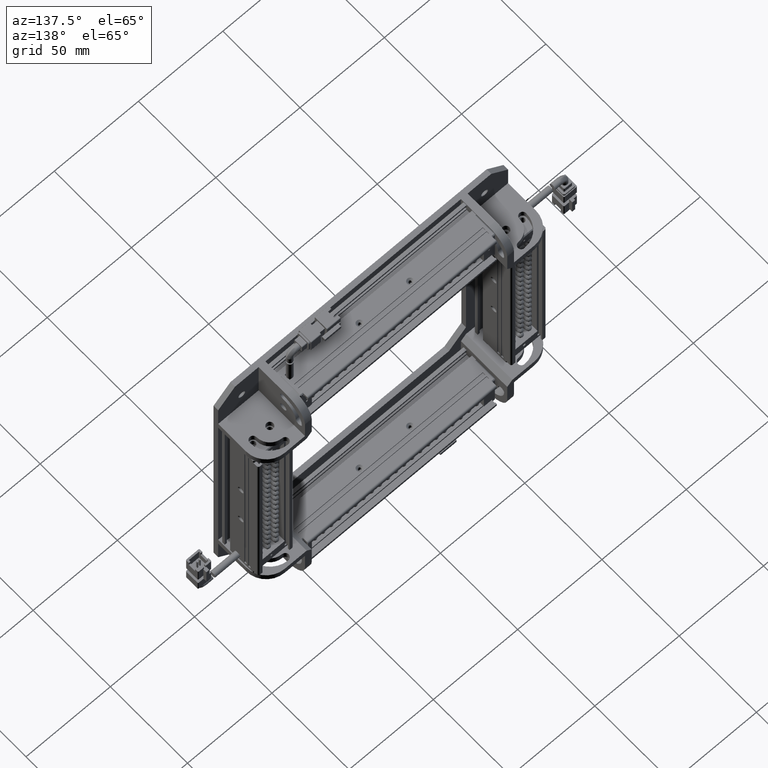
[diagram: clean part render]
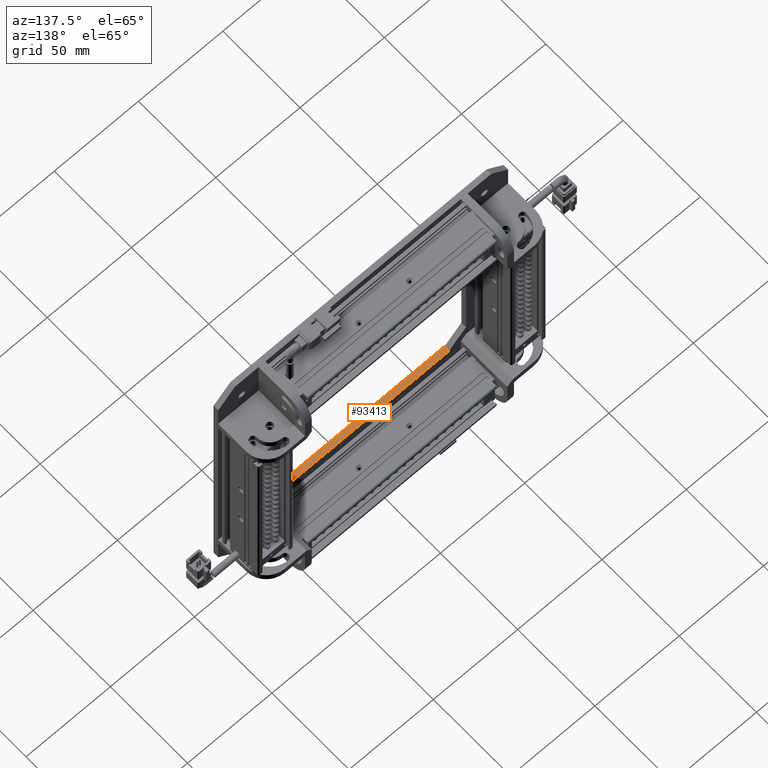
[diagram: same view with one face highlighted and labeled with its STEP entity id]
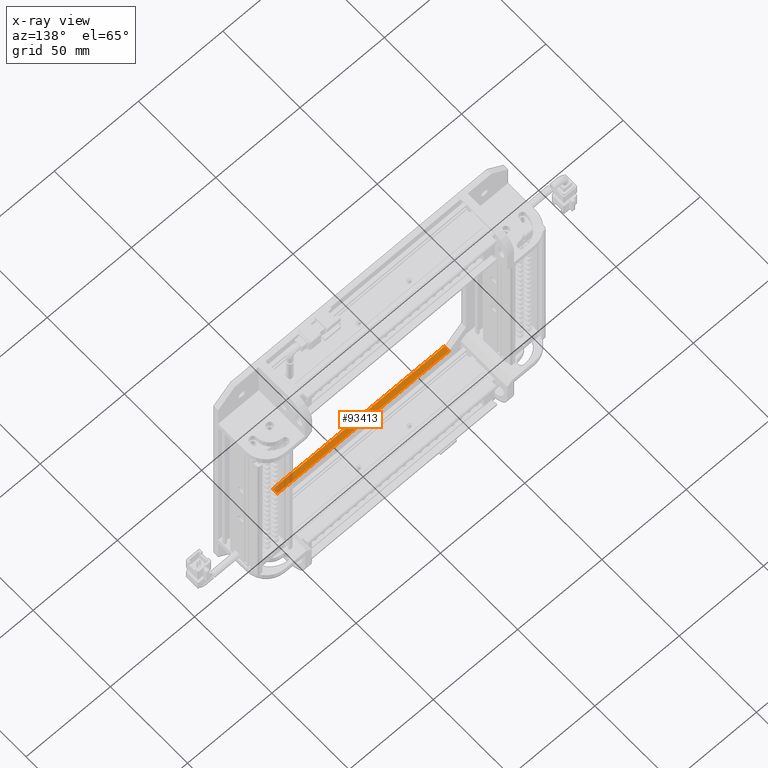
[diagram: x-ray of the same camera — body ghosted, the highlighted face saturated]
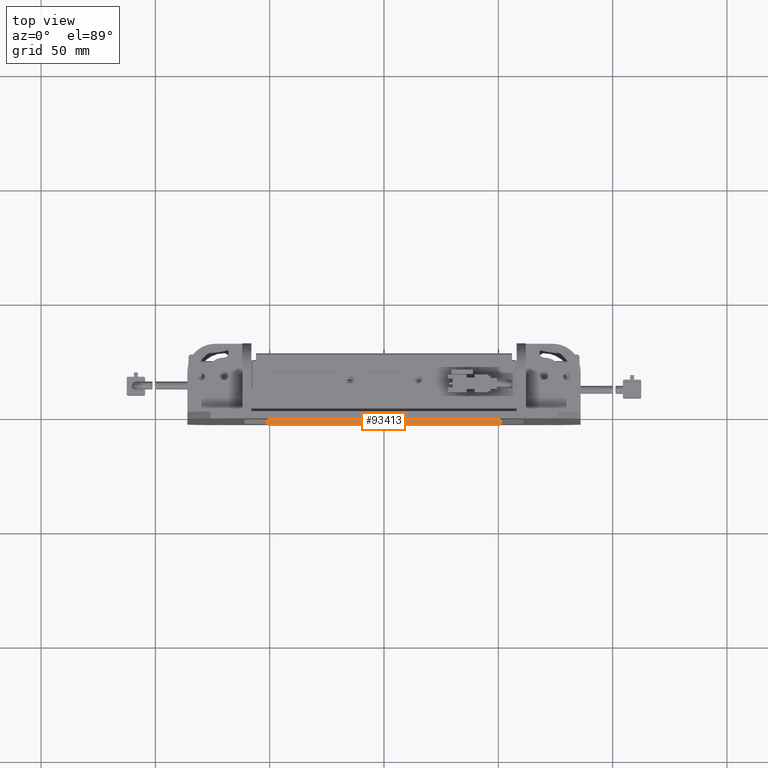
[diagram: same view with one face highlighted and labeled with its STEP entity id]
A machine part, auxiliary view. The second image highlights one B-rep face of the part: STEP entity #93413.
The next image is the same camera in x-ray: the body ghosted, the highlighted face saturated — about 10% of this face is hidden behind the body in this view.
A second angle (top view) of the same face is appended — the face is thin or edge-on in the first view.
In plain terms, the highlighted planar face has unit normal (-0, 0, 1).
Its self-contained STEP definition (entity closure, byte-faithful):
#3576 = FACE_OUTER_BOUND ( 'NONE', #68824, .T. ) ;
#7810 = CARTESIAN_POINT ( 'NONE',  ( -51.00000000000001400, -2.999999999999996900, -61.00000000000000700 ) ) ;
#8448 = CARTESIAN_POINT ( 'NONE',  ( -61.00000000000000000, -2.999999999999996400, -61.00000000000000700 ) ) ;
#12118 = VERTEX_POINT ( 'NONE', #93304 ) ;
#12986 = LINE ( 'NONE', #104684, #121063 ) ;
#16167 = VECTOR ( 'NONE', #37807, 1000.000000000000000 ) ;
#18983 = DIRECTION ( 'NONE',  ( -1.000000000000000000, 5.551115123125760500E-017, -6.476135529031897500E-017 ) ) ;
#25813 = VERTEX_POINT ( 'NONE', #93422 ) ;
#27351 = CARTESIAN_POINT ( 'NONE',  ( -61.00000000000000000, 3.386180225106714000E-015, -61.00000000000000700 ) ) ;
#30364 = VERTEX_POINT ( 'NONE', #54187 ) ;
#30806 = LINE ( 'NONE', #27351, #16167 ) ;
#34131 = DIRECTION ( 'NONE',  ( 5.551115123125761100E-017, 1.000000000000000000, -0.0000000000000000000 ) ) ;
#35669 = LINE ( 'NONE', #7810, #91466 ) ;
#37807 = DIRECTION ( 'NONE',  ( -1.000000000000000000, 5.551115123125760500E-017, -6.476135529031897500E-017 ) ) ;
#39111 = VECTOR ( 'NONE', #34131, 1000.000000000000000 ) ;
#39151 = ORIENTED_EDGE ( 'NONE', *, *, #54359, .F. ) ;
#39990 = ORIENTED_EDGE ( 'NONE', *, *, #105970, .F. ) ;
#42425 = LINE ( 'NONE', #44692, #39111 ) ;
#44692 = CARTESIAN_POINT ( 'NONE',  ( 50.99999999999990800, -3.000000000000003100, -61.00000000000000000 ) ) ;
#54187 = CARTESIAN_POINT ( 'NONE',  ( 50.99999999999991500, -2.831068712794133400E-015, -61.00000000000001400 ) ) ;
#54359 = EDGE_CURVE ( 'NONE', #131474, #25813, #35669, .T. ) ;
#60886 = CARTESIAN_POINT ( 'NONE',  ( -51.00000000000003600, -2.999999999999996900, -61.00000000000000000 ) ) ;
#62981 = DIRECTION ( 'NONE',  ( -1.000000000000000000, 5.551115123125760500E-017, -7.885175750095784300E-018 ) ) ;
#68824 = EDGE_LOOP ( 'NONE', ( #124433, #39151, #39990, #94140 ) ) ;
#81772 = DIRECTION ( 'NONE',  ( -6.476135529031897500E-017, 3.594977387462102100E-033, 1.000000000000000000 ) ) ;
#91466 = VECTOR ( 'NONE', #91675, 1000.000000000000000 ) ;
#91675 = DIRECTION ( 'NONE',  ( 5.551115123125761100E-017, 1.000000000000000000, -0.0000000000000000000 ) ) ;
#93304 = CARTESIAN_POINT ( 'NONE',  ( 50.99999999999991500, -3.000000000000003100, -61.00000000000001400 ) ) ;
#93413 = ADVANCED_FACE ( 'NONE', ( #3576 ), #102354, .T. ) ;
#93422 = CARTESIAN_POINT ( 'NONE',  ( -51.00000000000001400, 2.831068712794138900E-015, -61.00000000000001400 ) ) ;
#94140 = ORIENTED_EDGE ( 'NONE', *, *, #112633, .T. ) ;
#98124 = EDGE_CURVE ( 'NONE', #30364, #25813, #30806, .T. ) ;
#102354 = PLANE ( 'NONE',  #117511 ) ;
#104684 = CARTESIAN_POINT ( 'NONE',  ( 86.00000000000000000, -3.000000000000004900, -61.00000000000001400 ) ) ;
#105970 = EDGE_CURVE ( 'NONE', #12118, #131474, #12986, .T. ) ;
#112633 = EDGE_CURVE ( 'NONE', #12118, #30364, #42425, .T. ) ;
#117511 = AXIS2_PLACEMENT_3D ( 'NONE', #8448, #81772, #18983 ) ;
#121063 = VECTOR ( 'NONE', #62981, 1000.000000000000000 ) ;
#124433 = ORIENTED_EDGE ( 'NONE', *, *, #98124, .T. ) ;
#131474 = VERTEX_POINT ( 'NONE', #60886 ) ;